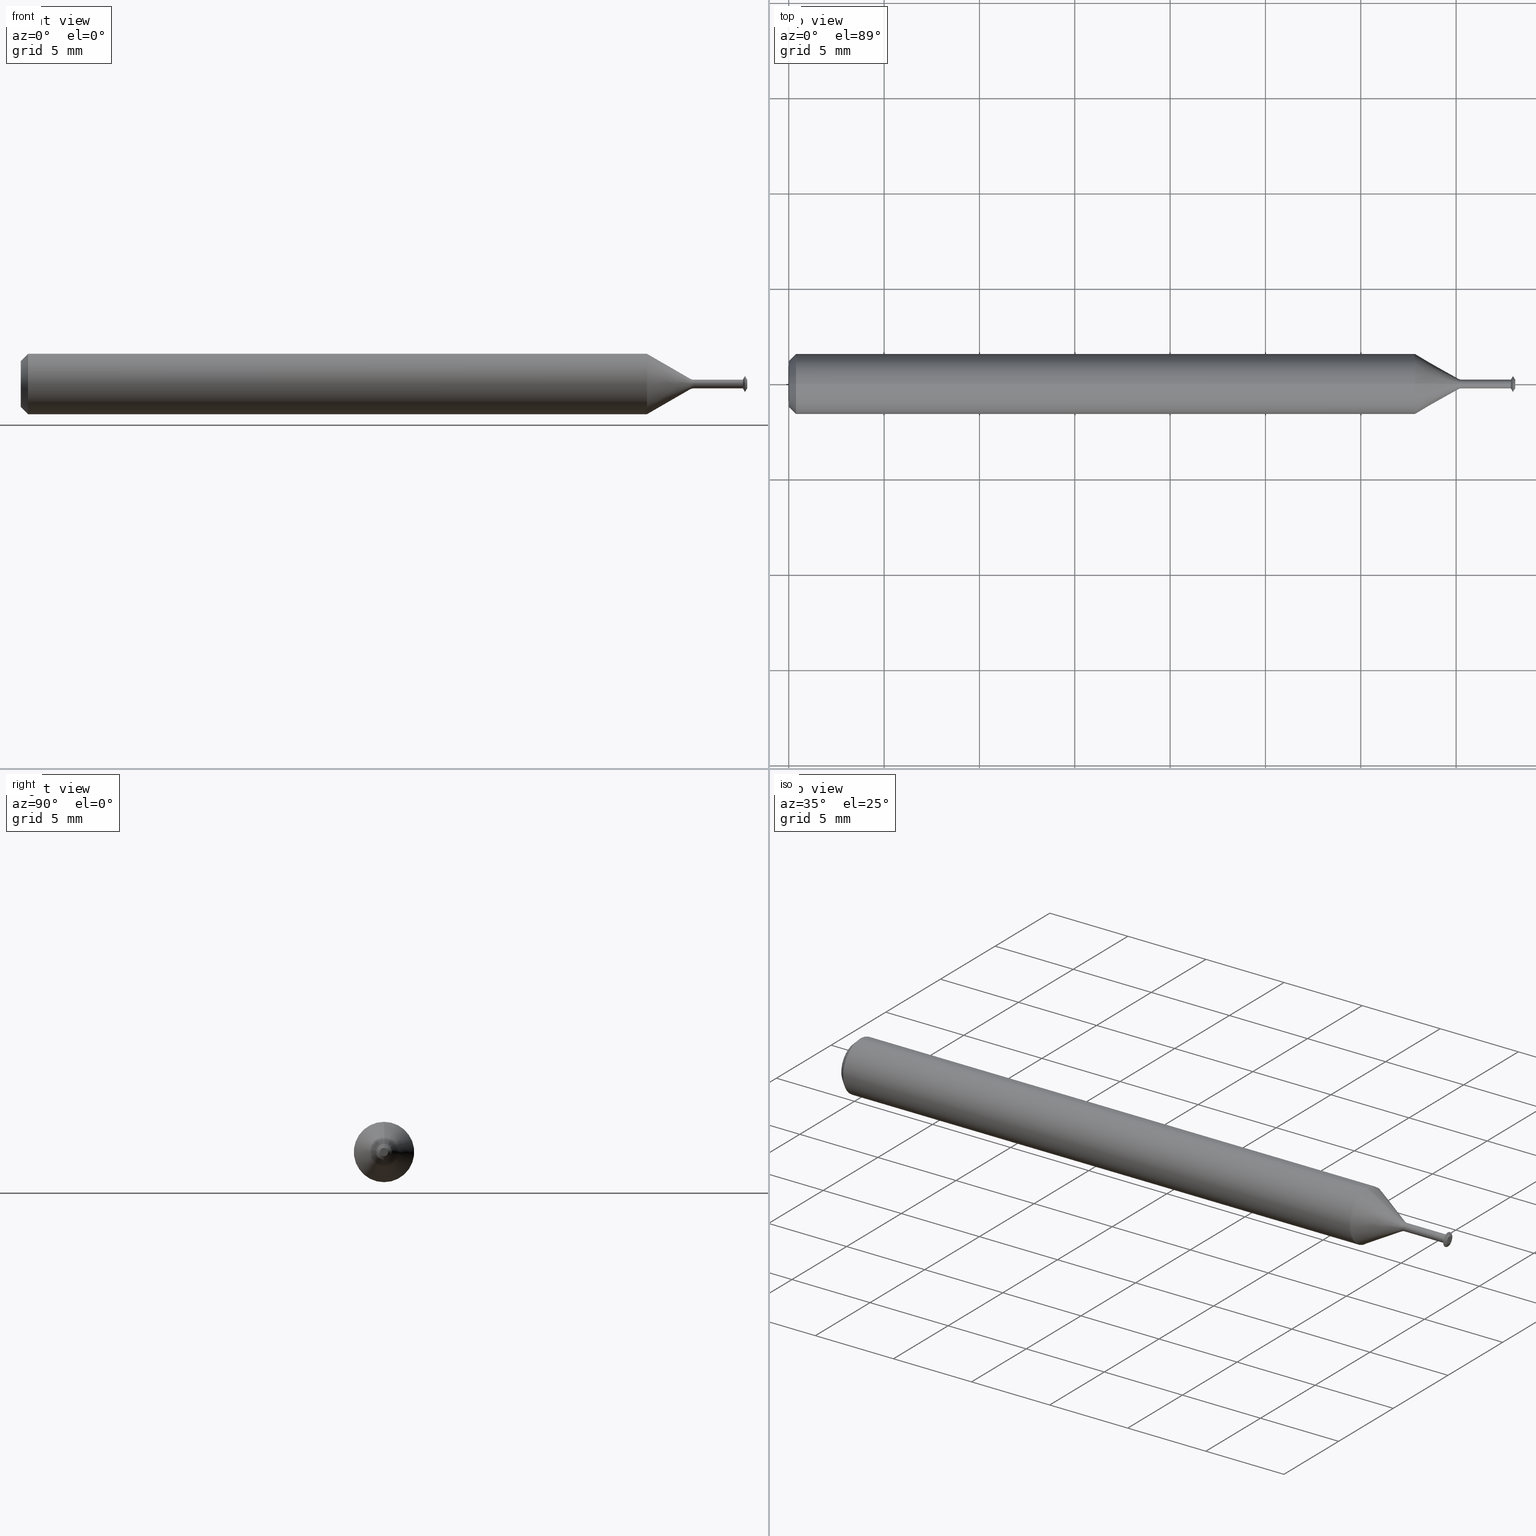
[diagram: canonical four-view strip — front | top / right | iso, engineering-drawing reading convention]
A machine part, canonical four-view strip (front | top / right | iso — engineering-drawing reading convention). The complete STEP part file that produces these views, byte-faithful:
ISO-10303-21;
HEADER;
FILE_DESCRIPTION (( 'STEP AP214' ),
    '1' );
FILE_NAME ('SPTM032L.STEP',
    '2019-04-02T20:39:58',
    ( '' ),
    ( '' ),
    'SwSTEP 2.0',
    'SolidWorks 2018',
    '' );
FILE_SCHEMA (( 'AUTOMOTIVE_DESIGN' ));
ENDSEC;

DATA;
#1 = CARTESIAN_POINT ( 'NONE',  ( 1.292941102884447746, 0.0000000000000000000, 0.06235000000000000958 ) ) ;
#2 = EDGE_LOOP ( 'NONE', ( #229, #59, #367, #34 ) ) ;
#3 = DIRECTION ( 'NONE',  ( 0.0000000000000000000, 0.0000000000000000000, 1.000000000000000000 ) ) ;
#4 = CIRCLE ( 'NONE', #404, 0.008999999999999983707 ) ;
#5 = EDGE_CURVE ( 'NONE', #386, #9, #76, .T. ) ;
#6 = VERTEX_POINT ( 'NONE', #230 ) ;
#7 = CARTESIAN_POINT ( 'NONE',  ( 1.500000000000000222, 0.0000000000000000000, 0.008499999999999724790 ) ) ;
#8 = AXIS2_PLACEMENT_3D ( 'NONE', #443, #181, #302 ) ;
#9 = VERTEX_POINT ( 'NONE', #19 ) ;
#10 = EDGE_CURVE ( 'NONE', #83, #29, #380, .T. ) ;
#11 = DIRECTION ( 'NONE',  ( -1.000000000000000000, -0.0000000000000000000, -0.0000000000000000000 ) ) ;
#12 = ORIENTED_EDGE ( 'NONE', *, *, #5, .T. ) ;
#13 = CARTESIAN_POINT ( 'NONE',  ( 0.0000000000000000000, 1.102182119232616794E-18, -0.008999999999999990646 ) ) ;
#14 = AXIS2_PLACEMENT_3D ( 'NONE', #190, #275, #418 ) ;
#15 = ADVANCED_FACE ( 'NONE', ( #222 ), #469, .T. ) ;
#16 = LINE ( 'NONE', #220, #110 ) ;
#17 = DIRECTION ( 'NONE',  ( 0.0000000000000000000, 0.0000000000000000000, -1.000000000000000000 ) ) ;
#18 = EDGE_LOOP ( 'NONE', ( #329, #162, #461, #331 ) ) ;
#19 = CARTESIAN_POINT ( 'NONE',  ( 1.495696013468246877, 1.959434878635731133E-18, -0.01599999999999972278 ) ) ;
#20 = ORIENTED_EDGE ( 'NONE', *, *, #95, .F. ) ;
#21 = VECTOR ( 'NONE', #236, 39.37007874015748143 ) ;
#22 = STYLED_ITEM ( 'NONE', ( #254 ), #276 ) ;
#23 = EDGE_CURVE ( 'NONE', #386, #281, #325, .T. ) ;
#24 = ORIENTED_EDGE ( 'NONE', *, *, #270, .T. ) ;
#25 = DIRECTION ( 'NONE',  ( -0.4977310399125972062, 1.062174661273186727E-16, -0.8673314314075815101 ) ) ;
#26 = SURFACE_SIDE_STYLE ('',( #73 ) ) ;
#27 = ADVANCED_BREP_SHAPE_REPRESENTATION ( 'SPTM032L', ( #276, #233 ), #488 ) ;
#28 = DIRECTION ( 'NONE',  ( 0.0000000000000000000, 0.0000000000000000000, -1.000000000000000000 ) ) ;
#29 = VERTEX_POINT ( 'NONE', #104 ) ;
#30 = CARTESIAN_POINT ( 'NONE',  ( 1.495696013468246877, 0.0000000000000000000, 0.01599999999999972278 ) ) ;
#31 = VERTEX_POINT ( 'NONE', #43 ) ;
#32 = AXIS2_PLACEMENT_3D ( 'NONE', #100, #227, #268 ) ;
#33 = DIRECTION ( 'NONE',  ( 0.0000000000000000000, 0.0000000000000000000, 1.000000000000000000 ) ) ;
#34 = ORIENTED_EDGE ( 'NONE', *, *, #219, .T. ) ;
#35 = CARTESIAN_POINT ( 'NONE',  ( 0.0000000000000000000, 0.0000000000000000000, 0.0000000000000000000 ) ) ;
#36 = EDGE_CURVE ( 'NONE', #284, #197, #167, .T. ) ;
#37 =( NAMED_UNIT ( * ) SI_UNIT ( $, .STERADIAN. ) SOLID_ANGLE_UNIT ( ) );
#38 = DIRECTION ( 'NONE',  ( -0.8660254037844383745, 6.123233995736770966E-17, -0.5000000000000004441 ) ) ;
#39 = VERTEX_POINT ( 'NONE', #415 ) ;
#40 = EDGE_CURVE ( 'NONE', #284, #297, #121, .T. ) ;
#41 = DIRECTION ( 'NONE',  ( 0.4977310399125676188, 1.062174661273208051E-16, 0.8673314314075987186 ) ) ;
#42 = CYLINDRICAL_SURFACE ( 'NONE', #44, 0.06235000000000000264 ) ;
#43 = CARTESIAN_POINT ( 'NONE',  ( 1.381865251354714053, 0.0000000000000000000, 0.01100961894323346582 ) ) ;
#44 = AXIS2_PLACEMENT_3D ( 'NONE', #79, #321, #3 ) ;
#45 = DIRECTION ( 'NONE',  ( 0.0000000000000000000, -1.000000000000000000, 0.0000000000000000000 ) ) ;
#46 = ADVANCED_FACE ( 'NONE', ( #237 ), #287, .T. ) ;
#47 = CIRCLE ( 'NONE', #416, 0.01599999999999972625 ) ;
#48 = ADVANCED_FACE ( 'NONE', ( #495 ), #214, .T. ) ;
#49 = CARTESIAN_POINT ( 'NONE',  ( 0.0000000000000000000, 0.0000000000000000000, 0.0000000000000000000 ) ) ;
#50 = VECTOR ( 'NONE', #54, 39.37007874015748143 ) ;
#51 = ADVANCED_FACE ( 'NONE', ( #441 ), #293, .T. ) ;
#52 = CARTESIAN_POINT ( 'NONE',  ( 1.490978959371944246, 0.0000000000000000000, 0.0000000000000000000 ) ) ;
#53 = EDGE_CURVE ( 'NONE', #408, #31, #313, .T. ) ;
#54 = DIRECTION ( 'NONE',  ( -1.000000000000000000, -0.0000000000000000000, -0.0000000000000000000 ) ) ;
#55 = AXIS2_PLACEMENT_3D ( 'NONE', #52, #360, #215 ) ;
#56 = TOROIDAL_SURFACE ( 'NONE', #498, 0.02399999999999999356, 0.01500000000000001159 ) ;
#57 = PLANE ( 'NONE',  #144 ) ;
#58 = CIRCLE ( 'NONE', #195, 0.06235000000000000264 ) ;
#59 = ORIENTED_EDGE ( 'NONE', *, *, #164, .F. ) ;
#60 = APPLICATION_PROTOCOL_DEFINITION ( 'draft international standard', 'automotive_design', 1998, #340 ) ;
#61 = CYLINDRICAL_SURFACE ( 'NONE', #339, 0.008999999999999990646 ) ;
#62 = STYLED_ITEM ( 'NONE', ( #475 ), #27 ) ;
#63 = APPLICATION_CONTEXT ( 'automotive_design' ) ;
#64 = EDGE_CURVE ( 'NONE', #465, #6, #112, .T. ) ;
#65 = ORIENTED_EDGE ( 'NONE', *, *, #357, .F. ) ;
#66 = ORIENTED_EDGE ( 'NONE', *, *, #300, .F. ) ;
#67 = CARTESIAN_POINT ( 'NONE',  ( 0.01499999999999996649, 0.0000000000000000000, 0.0000000000000000000 ) ) ;
#68 = VECTOR ( 'NONE', #41, 39.37007874015748143 ) ;
#69 = EDGE_LOOP ( 'NONE', ( #249, #428, #231, #342 ) ) ;
#70 = ORIENTED_EDGE ( 'NONE', *, *, #139, .F. ) ;
#71 = MECHANICAL_DESIGN_GEOMETRIC_PRESENTATION_REPRESENTATION (  '', ( #22 ), #102 ) ;
#72 = DIRECTION ( 'NONE',  ( 0.0000000000000000000, 0.0000000000000000000, -1.000000000000000000 ) ) ;
#73 = SURFACE_STYLE_FILL_AREA ( #308 ) ;
#74 = CONICAL_SURFACE ( 'NONE', #210, 0.04734999999999997544, 0.7853981633974503884 ) ;
#75 = DIRECTION ( 'NONE',  ( 0.0000000000000000000, 0.0000000000000000000, -1.000000000000000000 ) ) ;
#76 = LINE ( 'NONE', #486, #353 ) ;
#77 =( CONVERSION_BASED_UNIT ( 'INCH', #133 ) LENGTH_UNIT ( ) NAMED_UNIT ( #202 ) );
#78 = EDGE_LOOP ( 'NONE', ( #290, #24, #303, #239 ) ) ;
#79 = CARTESIAN_POINT ( 'NONE',  ( 0.0000000000000000000, 0.0000000000000000000, 0.0000000000000000000 ) ) ;
#80 = UNCERTAINTY_MEASURE_WITH_UNIT (LENGTH_MEASURE( 1.000000000000000082E-05 ), #77, 'distance_accuracy_value', 'NONE');
#81 = DIRECTION ( 'NONE',  ( 0.0000000000000000000, 0.0000000000000000000, 1.000000000000000000 ) ) ;
#82 = COLOUR_RGB ( '',0.7529411764705882248, 0.7529411764705882248, 0.7529411764705882248 ) ;
#83 = VERTEX_POINT ( 'NONE', #409 ) ;
#84 = DIRECTION ( 'NONE',  ( -1.000000000000000000, -0.0000000000000000000, -0.0000000000000000000 ) ) ;
#85 = EDGE_LOOP ( 'NONE', ( #170, #400, #128, #70 ) ) ;
#86 = CARTESIAN_POINT ( 'NONE',  ( 1.500000000000000222, 0.0000000000000000000, 0.0000000000000000000 ) ) ;
#87 = CONICAL_SURFACE ( 'NONE', #158, 0.008499999999999724790, 1.049815545074606504 ) ;
#88 = DIRECTION ( 'NONE',  ( 1.000000000000000000, 0.0000000000000000000, 0.0000000000000000000 ) ) ;
#89 = ORIENTED_EDGE ( 'NONE', *, *, #64, .T. ) ;
#90 = ADVANCED_FACE ( 'NONE', ( #242 ), #57, .F. ) ;
#91 = PRESENTATION_LAYER_ASSIGNMENT (  '', '', ( #62 ) ) ;
#92 = DIRECTION ( 'NONE',  ( -0.0000000000000000000, 0.0000000000000000000, 1.000000000000000000 ) ) ;
#93 = VERTEX_POINT ( 'NONE', #476 ) ;
#94 = CARTESIAN_POINT ( 'NONE',  ( 1.494996013468246732, 0.0000000000000000000, 0.0000000000000000000 ) ) ;
#95 = EDGE_CURVE ( 'NONE', #225, #83, #427, .T. ) ;
#96 = LINE ( 'NONE', #324, #68 ) ;
#97 = EDGE_LOOP ( 'NONE', ( #113, #108, #257, #501 ) ) ;
#98 = DIRECTION ( 'NONE',  ( 0.7071067811865460184, 0.0000000000000000000, -0.7071067811865489050 ) ) ;
#99 = EDGE_LOOP ( 'NONE', ( #402, #369, #208, #152 ) ) ;
#100 = CARTESIAN_POINT ( 'NONE',  ( 1.381865251354714053, 0.0000000000000000000, 0.0000000000000000000 ) ) ;
#101 = LENGTH_MEASURE_WITH_UNIT ( LENGTH_MEASURE( 0.02539999999999999897 ), #234 );
#102 =( GEOMETRIC_REPRESENTATION_CONTEXT ( 3 ) GLOBAL_UNCERTAINTY_ASSIGNED_CONTEXT ( ( #80 ) ) GLOBAL_UNIT_ASSIGNED_CONTEXT ( ( #77, #320, #37 ) ) REPRESENTATION_CONTEXT ( 'NONE', 'WORKASPACE' ) );
#103 = FACE_OUTER_BOUND ( 'NONE', #135, .T. ) ;
#104 = CARTESIAN_POINT ( 'NONE',  ( 0.01499999999999996649, 7.635672792683746671E-18, -0.06235000000000000264 ) ) ;
#105 = PRODUCT_CONTEXT ( 'NONE', #63, 'mechanical' ) ;
#106 = EDGE_LOOP ( 'NONE', ( #424, #157, #292, #174 ) ) ;
#107 = DIRECTION ( 'NONE',  ( 0.0000000000000000000, 0.0000000000000000000, 1.000000000000000000 ) ) ;
#108 = ORIENTED_EDGE ( 'NONE', *, *, #392, .T. ) ;
#109 = APPLICATION_PROTOCOL_DEFINITION ( 'draft international standard', 'automotive_design', 1998, #63 ) ;
#110 = VECTOR ( 'NONE', #11, 39.37007874015748143 ) ;
#111 = CARTESIAN_POINT ( 'NONE',  ( 0.0000000000000000000, 0.0000000000000000000, 0.01599999999999972625 ) ) ;
#112 = CIRCLE ( 'NONE', #55, 0.008999999999999997585 ) ;
#113 = ORIENTED_EDGE ( 'NONE', *, *, #145, .F. ) ;
#114 = AXIS2_PLACEMENT_3D ( 'NONE', #49, #258, #17 ) ;
#115 = CARTESIAN_POINT ( 'NONE',  ( 1.494996013468246732, 1.959434878635731519E-18, -0.01599999999999972625 ) ) ;
#116 = EDGE_CURVE ( 'NONE', #281, #386, #147, .T. ) ;
#117 = EDGE_CURVE ( 'NONE', #29, #297, #58, .T. ) ;
#118 = VECTOR ( 'NONE', #454, 39.37007874015748143 ) ;
#119 = CARTESIAN_POINT ( 'NONE',  ( 0.0000000000000000000, 0.0000000000000000000, 0.0000000000000000000 ) ) ;
#120 = CARTESIAN_POINT ( 'NONE',  ( 0.0000000000000000000, 0.0000000000000000000, 0.0000000000000000000 ) ) ;
#121 = LINE ( 'NONE', #223, #50 ) ;
#122 = DIRECTION ( 'NONE',  ( 0.0000000000000000000, 0.0000000000000000000, 1.000000000000000000 ) ) ;
#123 = MECHANICAL_DESIGN_GEOMETRIC_PRESENTATION_REPRESENTATION (  '', ( #62 ), #149 ) ;
#124 = SURFACE_STYLE_USAGE ( .BOTH. , #396 ) ;
#125 = UNCERTAINTY_MEASURE_WITH_UNIT (LENGTH_MEASURE( 1.000000000000000082E-05 ), #452, 'distance_accuracy_value', 'NONE');
#126 = DIRECTION ( 'NONE',  ( -0.4977310399125972062, 0.0000000000000000000, 0.8673314314075815101 ) ) ;
#127 = CIRCLE ( 'NONE', #282, 0.01599999999999972625 ) ;
#128 = ORIENTED_EDGE ( 'NONE', *, *, #224, .T. ) ;
#129 = DIRECTION ( 'NONE',  ( 0.0000000000000000000, 0.0000000000000000000, 1.000000000000000000 ) ) ;
#130 = CARTESIAN_POINT ( 'NONE',  ( 1.389365251354714115, 0.0000000000000000000, 0.0000000000000000000 ) ) ;
#131 = DIRECTION ( 'NONE',  ( 0.0000000000000000000, 0.0000000000000000000, 1.000000000000000000 ) ) ;
#132 = LINE ( 'NONE', #151, #21 ) ;
#133 = LENGTH_MEASURE_WITH_UNIT ( LENGTH_MEASURE( 0.02539999999999999897 ), #352 );
#134 = AXIS2_PLACEMENT_3D ( 'NONE', #429, #160, #394 ) ;
#135 = EDGE_LOOP ( 'NONE', ( #142, #12, #432, #140 ) ) ;
#136 = ADVANCED_FACE ( 'NONE', ( #213 ), #221, .T. ) ;
#137 = DIRECTION ( 'NONE',  ( 0.0000000000000000000, 0.0000000000000000000, 1.000000000000000000 ) ) ;
#138 = DIRECTION ( 'NONE',  ( 0.0000000000000000000, 0.0000000000000000000, 1.000000000000000000 ) ) ;
#139 = EDGE_CURVE ( 'NONE', #31, #93, #323, .T. ) ;
#140 = ORIENTED_EDGE ( 'NONE', *, *, #248, .F. ) ;
#141 = DIRECTION ( 'NONE',  ( 0.0000000000000000000, 0.0000000000000000000, 1.000000000000000000 ) ) ;
#142 = ORIENTED_EDGE ( 'NONE', *, *, #116, .T. ) ;
#143 = DIRECTION ( 'NONE',  ( 1.000000000000000000, 0.0000000000000000000, 0.0000000000000000000 ) ) ;
#144 = AXIS2_PLACEMENT_3D ( 'NONE', #375, #364, #92 ) ;
#145 = EDGE_CURVE ( 'NONE', #197, #29, #16, .T. ) ;
#146 = EDGE_CURVE ( 'NONE', #39, #397, #127, .T. ) ;
#147 = CIRCLE ( 'NONE', #166, 0.008499999999999724790 ) ;
#148 = DIRECTION ( 'NONE',  ( 0.0000000000000000000, 0.0000000000000000000, 1.000000000000000000 ) ) ;
#149 =( GEOMETRIC_REPRESENTATION_CONTEXT ( 3 ) GLOBAL_UNCERTAINTY_ASSIGNED_CONTEXT ( ( #466 ) ) GLOBAL_UNIT_ASSIGNED_CONTEXT ( ( #232, #450, #187 ) ) REPRESENTATION_CONTEXT ( 'NONE', 'WORKASPACE' ) );
#150 = DIRECTION ( 'NONE',  ( 0.0000000000000000000, 0.0000000000000000000, 1.000000000000000000 ) ) ;
#151 = CARTESIAN_POINT ( 'NONE',  ( 0.0000000000000000000, 0.0000000000000000000, 0.008999999999999990646 ) ) ;
#152 = ORIENTED_EDGE ( 'NONE', *, *, #178, .F. ) ;
#153 = DIRECTION ( 'NONE',  ( -0.0000000000000000000, 1.000000000000000000, 1.224646799147353207E-16 ) ) ;
#154 = LINE ( 'NONE', #289, #458 ) ;
#155 = PLANE ( 'NONE',  #362 ) ;
#156 = DIRECTION ( 'NONE',  ( -1.000000000000000000, -0.0000000000000000000, -0.0000000000000000000 ) ) ;
#157 = ORIENTED_EDGE ( 'NONE', *, *, #322, .F. ) ;
#158 = AXIS2_PLACEMENT_3D ( 'NONE', #246, #430, #122 ) ;
#159 = DIRECTION ( 'NONE',  ( 0.0000000000000000000, 0.0000000000000000000, 1.000000000000000000 ) ) ;
#160 = DIRECTION ( 'NONE',  ( -1.000000000000000000, -0.0000000000000000000, -0.0000000000000000000 ) ) ;
#161 = FILL_AREA_STYLE ('',( #204 ) ) ;
#162 = ORIENTED_EDGE ( 'NONE', *, *, #145, .T. ) ;
#163 = CARTESIAN_POINT ( 'NONE',  ( 1.389365251354714115, 0.0000000000000000000, 0.0000000000000000000 ) ) ;
#164 = EDGE_CURVE ( 'NONE', #31, #408, #420, .T. ) ;
#165 = VECTOR ( 'NONE', #467, 39.37007874015748854 ) ;
#166 = AXIS2_PLACEMENT_3D ( 'NONE', #86, #172, #138 ) ;
#167 = CIRCLE ( 'NONE', #433, 0.06235000000000000264 ) ;
#168 = TOROIDAL_SURFACE ( 'NONE', #14, 0.02399999999999999356, 0.01500000000000001159 ) ;
#169 = ADVANCED_FACE ( 'NONE', ( #410 ), #301, .T. ) ;
#170 = ORIENTED_EDGE ( 'NONE', *, *, #53, .F. ) ;
#171 = DIRECTION ( 'NONE',  ( 0.0000000000000000000, 0.0000000000000000000, 1.000000000000000000 ) ) ;
#172 = DIRECTION ( 'NONE',  ( -1.000000000000000000, -0.0000000000000000000, -0.0000000000000000000 ) ) ;
#173 = FACE_OUTER_BOUND ( 'NONE', #447, .T. ) ;
#174 = ORIENTED_EDGE ( 'NONE', *, *, #448, .F. ) ;
#175 = CARTESIAN_POINT ( 'NONE',  ( 1.381865251354714053, 0.0000000000000000000, 0.0000000000000000000 ) ) ;
#176 = PRODUCT_DEFINITION_SHAPE ( 'NONE', 'NONE',  #261 ) ;
#177 = DIRECTION ( 'NONE',  ( 0.0000000000000000000, 0.0000000000000000000, 1.000000000000000000 ) ) ;
#178 = EDGE_CURVE ( 'NONE', #9, #453, #493, .T. ) ;
#179 = LINE ( 'NONE', #7, #373 ) ;
#180 = CARTESIAN_POINT ( 'NONE',  ( 0.0000000000000000000, 0.0000000000000000000, -0.04734999999999997544 ) ) ;
#181 = DIRECTION ( 'NONE',  ( -1.000000000000000000, -0.0000000000000000000, -0.0000000000000000000 ) ) ;
#182 = ORIENTED_EDGE ( 'NONE', *, *, #64, .F. ) ;
#183 = AXIS2_PLACEMENT_3D ( 'NONE', #120, #348, #72 ) ;
#184 = COLOUR_RGB ( '',0.7529411764705882248, 0.7529411764705882248, 0.7529411764705882248 ) ;
#185 = DIRECTION ( 'NONE',  ( -1.000000000000000000, -0.0000000000000000000, -0.0000000000000000000 ) ) ;
#186 = CIRCLE ( 'NONE', #243, 0.01599999999999972625 ) ;
#187 =( NAMED_UNIT ( * ) SI_UNIT ( $, .STERADIAN. ) SOLID_ANGLE_UNIT ( ) );
#188 = ORIENTED_EDGE ( 'NONE', *, *, #53, .T. ) ;
#189 =( NAMED_UNIT ( * ) PLANE_ANGLE_UNIT ( ) SI_UNIT ( $, .RADIAN. ) );
#190 = CARTESIAN_POINT ( 'NONE',  ( 1.389365251354714115, 0.0000000000000000000, 0.0000000000000000000 ) ) ;
#191 = CARTESIAN_POINT ( 'NONE',  ( 1.490978959371944246, 1.530808498934174253E-18, 0.008999999999999997585 ) ) ;
#192 = FACE_OUTER_BOUND ( 'NONE', #422, .T. ) ;
#193 = DIRECTION ( 'NONE',  ( 0.0000000000000000000, 0.0000000000000000000, 1.000000000000000000 ) ) ;
#194 = EDGE_LOOP ( 'NONE', ( #66, #203, #491, #309 ) ) ;
#195 = AXIS2_PLACEMENT_3D ( 'NONE', #439, #328, #435 ) ;
#196 = CARTESIAN_POINT ( 'NONE',  ( 1.500000000000000222, 1.500192328955473735E-18, -0.008499999999999724790 ) ) ;
#197 = VERTEX_POINT ( 'NONE', #442 ) ;
#198 = CARTESIAN_POINT ( 'NONE',  ( 1.494996013468246732, 0.0000000000000000000, -0.01599999999999972625 ) ) ;
#199 = LINE ( 'NONE', #350, #306 ) ;
#200 = CARTESIAN_POINT ( 'NONE',  ( 1.389365251354714115, 0.0000000000000000000, 0.0000000000000000000 ) ) ;
#201 = ORIENTED_EDGE ( 'NONE', *, *, #211, .T. ) ;
#202 = DIMENSIONAL_EXPONENTS ( 1.000000000000000000, 0.0000000000000000000, 0.0000000000000000000, 0.0000000000000000000, 0.0000000000000000000, 0.0000000000000000000, 0.0000000000000000000 ) ;
#203 = ORIENTED_EDGE ( 'NONE', *, *, #178, .T. ) ;
#204 = FILL_AREA_STYLE_COLOUR ( '', #82 ) ;
#205 = VECTOR ( 'NONE', #298, 39.37007874015748143 ) ;
#206 = DIMENSIONAL_EXPONENTS ( 1.000000000000000000, 0.0000000000000000000, 0.0000000000000000000, 0.0000000000000000000, 0.0000000000000000000, 0.0000000000000000000, 0.0000000000000000000 ) ;
#207 = ORIENTED_EDGE ( 'NONE', *, *, #23, .F. ) ;
#208 = ORIENTED_EDGE ( 'NONE', *, *, #248, .T. ) ;
#209 = CIRCLE ( 'NONE', #134, 0.008999999999999997585 ) ;
#210 = AXIS2_PLACEMENT_3D ( 'NONE', #35, #390, #75 ) ;
#211 = EDGE_CURVE ( 'NONE', #6, #338, #312, .T. ) ;
#212 = ADVANCED_FACE ( 'NONE', ( #192 ), #482, .T. ) ;
#213 = FACE_OUTER_BOUND ( 'NONE', #349, .T. ) ;
#214 = CONICAL_SURFACE ( 'NONE', #483, 0.01100961894323346235, 0.5235987755982993708 ) ;
#215 = DIRECTION ( 'NONE',  ( 0.0000000000000000000, 0.0000000000000000000, 1.000000000000000000 ) ) ;
#216 = ORIENTED_EDGE ( 'NONE', *, *, #235, .T. ) ;
#217 = ADVANCED_FACE ( 'NONE', ( #399 ), #291, .T. ) ;
#218 = CARTESIAN_POINT ( 'NONE',  ( 0.0000000000000000000, 0.0000000000000000000, 0.0000000000000000000 ) ) ;
#219 = EDGE_CURVE ( 'NONE', #93, #338, #384, .T. ) ;
#220 = CARTESIAN_POINT ( 'NONE',  ( 0.0000000000000000000, 7.635672792683746671E-18, -0.06235000000000000264 ) ) ;
#221 = CONICAL_SURFACE ( 'NONE', #226, 0.01100961894323346235, 0.5235987755982993708 ) ;
#222 = FACE_OUTER_BOUND ( 'NONE', #99, .T. ) ;
#223 = CARTESIAN_POINT ( 'NONE',  ( 0.0000000000000000000, 0.0000000000000000000, 0.06235000000000000264 ) ) ;
#224 = EDGE_CURVE ( 'NONE', #338, #93, #4, .T. ) ;
#225 = VERTEX_POINT ( 'NONE', #471 ) ;
#226 = AXIS2_PLACEMENT_3D ( 'NONE', #368, #335, #137 ) ;
#227 = DIRECTION ( 'NONE',  ( -1.000000000000000000, -0.0000000000000000000, -0.0000000000000000000 ) ) ;
#228 = LINE ( 'NONE', #381, #118 ) ;
#229 = ORIENTED_EDGE ( 'NONE', *, *, #437, .F. ) ;
#230 = CARTESIAN_POINT ( 'NONE',  ( 1.490978959371944246, 0.0000000000000000000, -0.008999999999999997585 ) ) ;
#231 = ORIENTED_EDGE ( 'NONE', *, *, #146, .F. ) ;
#232 =( CONVERSION_BASED_UNIT ( 'INCH', #363 ) LENGTH_UNIT ( ) NAMED_UNIT ( #206 ) );
#233 = AXIS2_PLACEMENT_3D ( 'NONE', #341, #148, #378 ) ;
#234 =( LENGTH_UNIT ( ) NAMED_UNIT ( * ) SI_UNIT ( $, .METRE. ) );
#235 = EDGE_CURVE ( 'NONE', #465, #39, #96, .T. ) ;
#236 = DIRECTION ( 'NONE',  ( -1.000000000000000000, -0.0000000000000000000, -0.0000000000000000000 ) ) ;
#237 = FACE_OUTER_BOUND ( 'NONE', #194, .T. ) ;
#238 = DIRECTION ( 'NONE',  ( 0.0000000000000000000, 0.0000000000000000000, 1.000000000000000000 ) ) ;
#239 = ORIENTED_EDGE ( 'NONE', *, *, #499, .F. ) ;
#240 = DIRECTION ( 'NONE',  ( -1.000000000000000000, -0.0000000000000000000, -0.0000000000000000000 ) ) ;
#241 = DIRECTION ( 'NONE',  ( 0.4977310399125676188, 0.0000000000000000000, -0.8673314314075987186 ) ) ;
#242 = FACE_OUTER_BOUND ( 'NONE', #319, .T. ) ;
#243 = AXIS2_PLACEMENT_3D ( 'NONE', #426, #156, #389 ) ;
#244 = DIRECTION ( 'NONE',  ( -1.000000000000000000, -0.0000000000000000000, -0.0000000000000000000 ) ) ;
#245 = ORIENTED_EDGE ( 'NONE', *, *, #347, .T. ) ;
#246 = CARTESIAN_POINT ( 'NONE',  ( 1.500000000000000222, 0.0000000000000000000, 0.0000000000000000000 ) ) ;
#247 = CARTESIAN_POINT ( 'NONE',  ( 1.500000000000000222, 0.0000000000000000000, 0.008499999999999724790 ) ) ;
#248 = EDGE_CURVE ( 'NONE', #281, #453, #179, .T. ) ;
#249 = ORIENTED_EDGE ( 'NONE', *, *, #419, .T. ) ;
#250 = DIRECTION ( 'NONE',  ( -1.000000000000000000, -0.0000000000000000000, -0.0000000000000000000 ) ) ;
#251 = EDGE_CURVE ( 'NONE', #225, #297, #468, .T. ) ;
#252 = DIRECTION ( 'NONE',  ( 0.0000000000000000000, 0.0000000000000000000, -1.000000000000000000 ) ) ;
#253 = AXIS2_PLACEMENT_3D ( 'NONE', #480, #45, #252 ) ;
#254 = PRESENTATION_STYLE_ASSIGNMENT (( #124 ) ) ;
#255 = DIMENSIONAL_EXPONENTS ( 1.000000000000000000, 0.0000000000000000000, 0.0000000000000000000, 0.0000000000000000000, 0.0000000000000000000, 0.0000000000000000000, 0.0000000000000000000 ) ;
#256 = CARTESIAN_POINT ( 'NONE',  ( 1.500000000000000222, 0.0000000000000000000, 0.0000000000000000000 ) ) ;
#257 = ORIENTED_EDGE ( 'NONE', *, *, #40, .T. ) ;
#258 = DIRECTION ( 'NONE',  ( -1.000000000000000000, -0.0000000000000000000, -0.0000000000000000000 ) ) ;
#259 = ADVANCED_FACE ( 'NONE', ( #279 ), #56, .F. ) ;
#260 = DIRECTION ( 'NONE',  ( 0.0000000000000000000, 0.0000000000000000000, 1.000000000000000000 ) ) ;
#261 = PRODUCT_DEFINITION ( 'UNKNOWN', '', #288, #455 ) ;
#262 = DIRECTION ( 'NONE',  ( -1.000000000000000000, -0.0000000000000000000, -0.0000000000000000000 ) ) ;
#263 = EDGE_LOOP ( 'NONE', ( #20, #358, #414, #317 ) ) ;
#264 = ADVANCED_FACE ( 'NONE', ( #267 ), #42, .T. ) ;
#265 = DIRECTION ( 'NONE',  ( -1.000000000000000000, -0.0000000000000000000, -0.0000000000000000000 ) ) ;
#266 = DIRECTION ( 'NONE',  ( 0.0000000000000000000, 0.0000000000000000000, 1.000000000000000000 ) ) ;
#267 = FACE_OUTER_BOUND ( 'NONE', #97, .T. ) ;
#268 = DIRECTION ( 'NONE',  ( 0.0000000000000000000, 0.0000000000000000000, 1.000000000000000000 ) ) ;
#269 = ORIENTED_EDGE ( 'NONE', *, *, #224, .F. ) ;
#270 = EDGE_CURVE ( 'NONE', #408, #197, #154, .T. ) ;
#271 = SURFACE_STYLE_USAGE ( .BOTH. , #26 ) ;
#272 = LINE ( 'NONE', #111, #351 ) ;
#273 = FILL_AREA_STYLE_COLOUR ( '', #184 ) ;
#274 = ORIENTED_EDGE ( 'NONE', *, *, #392, .F. ) ;
#275 = DIRECTION ( 'NONE',  ( -1.000000000000000000, -0.0000000000000000000, -0.0000000000000000000 ) ) ;
#276 = MANIFOLD_SOLID_BREP ( 'D2E6CD99-F9C7-4f8e-A78C-28697E84F901-GAAFaceID9', #299 ) ;
#277 = EDGE_CURVE ( 'NONE', #6, #465, #209, .T. ) ;
#278 = CARTESIAN_POINT ( 'NONE',  ( 1.495696013468246877, 0.0000000000000000000, 0.0000000000000000000 ) ) ;
#279 = FACE_OUTER_BOUND ( 'NONE', #2, .T. ) ;
#280 = DIRECTION ( 'NONE',  ( 1.000000000000000000, 0.0000000000000000000, 0.0000000000000000000 ) ) ;
#281 = VERTEX_POINT ( 'NONE', #247 ) ;
#282 = AXIS2_PLACEMENT_3D ( 'NONE', #406, #265, #260 ) ;
#283 = DIRECTION ( 'NONE',  ( -1.000000000000000000, -0.0000000000000000000, -0.0000000000000000000 ) ) ;
#284 = VERTEX_POINT ( 'NONE', #1 ) ;
#285 = CARTESIAN_POINT ( 'NONE',  ( 1.389365251354714115, 1.102182119232616409E-18, -0.008999999999999983707 ) ) ;
#286 = CYLINDRICAL_SURFACE ( 'NONE', #316, 0.06235000000000000264 ) ;
#287 = CYLINDRICAL_SURFACE ( 'NONE', #8, 0.01599999999999972625 ) ;
#288 = PRODUCT_DEFINITION_FORMATION_WITH_SPECIFIED_SOURCE ( 'ANY', '', #401, .NOT_KNOWN. ) ;
#289 = CARTESIAN_POINT ( 'NONE',  ( 1.381865251354714053, 1.348289459866292480E-18, -0.01100961894323346235 ) ) ;
#290 = ORIENTED_EDGE ( 'NONE', *, *, #164, .T. ) ;
#291 = CYLINDRICAL_SURFACE ( 'NONE', #446, 0.01599999999999972625 ) ;
#292 = ORIENTED_EDGE ( 'NONE', *, *, #10, .T. ) ;
#293 = CONICAL_SURFACE ( 'NONE', #456, 0.04734999999999997544, 0.7853981633974503884 ) ;
#294 = AXIS2_PLACEMENT_3D ( 'NONE', #496, #240, #193 ) ;
#295 = FACE_OUTER_BOUND ( 'NONE', #18, .T. ) ;
#296 = ADVANCED_FACE ( 'NONE', ( #103 ), #87, .T. ) ;
#297 = VERTEX_POINT ( 'NONE', #318 ) ;
#298 = DIRECTION ( 'NONE',  ( -1.000000000000000000, -0.0000000000000000000, -0.0000000000000000000 ) ) ;
#299 = CLOSED_SHELL ( 'NONE', ( #332, #361, #48, #474, #212, #169, #217, #296, #90, #15, #46, #407, #366, #259, #136, #264, #371, #51 ) ) ;
#300 = EDGE_CURVE ( 'NONE', #9, #397, #199, .T. ) ;
#301 = CONICAL_SURFACE ( 'NONE', #327, 0.01599999999999972625, 1.049815545074640699 ) ;
#302 = DIRECTION ( 'NONE',  ( 0.0000000000000000000, 0.0000000000000000000, 1.000000000000000000 ) ) ;
#303 = ORIENTED_EDGE ( 'NONE', *, *, #36, .F. ) ;
#304 = DIRECTION ( 'NONE',  ( -1.000000000000000000, -0.0000000000000000000, -0.0000000000000000000 ) ) ;
#305 = AXIS2_PLACEMENT_3D ( 'NONE', #175, #262, #330 ) ;
#306 = VECTOR ( 'NONE', #244, 39.37007874015748143 ) ;
#307 = ORIENTED_EDGE ( 'NONE', *, *, #499, .T. ) ;
#308 = FILL_AREA_STYLE ('',( #273 ) ) ;
#309 = ORIENTED_EDGE ( 'NONE', *, *, #347, .F. ) ;
#310 = PRODUCT_RELATED_PRODUCT_CATEGORY ( 'part', '', ( #401 ) ) ;
#311 = DIRECTION ( 'NONE',  ( 1.000000000000000000, 0.0000000000000000000, 0.0000000000000000000 ) ) ;
#312 = LINE ( 'NONE', #13, #205 ) ;
#313 = CIRCLE ( 'NONE', #32, 0.01100961894323346235 ) ;
#314 = ORIENTED_EDGE ( 'NONE', *, *, #211, .F. ) ;
#315 = CARTESIAN_POINT ( 'NONE',  ( 0.0000000000000000000, 0.0000000000000000000, 0.0000000000000000000 ) ) ;
#316 = AXIS2_PLACEMENT_3D ( 'NONE', #119, #346, #33 ) ;
#317 = ORIENTED_EDGE ( 'NONE', *, *, #10, .F. ) ;
#318 = CARTESIAN_POINT ( 'NONE',  ( 0.01499999999999996649, 0.0000000000000000000, 0.06235000000000000264 ) ) ;
#319 = EDGE_LOOP ( 'NONE', ( #359, #207 ) ) ;
#320 =( NAMED_UNIT ( * ) PLANE_ANGLE_UNIT ( ) SI_UNIT ( $, .RADIAN. ) );
#321 = DIRECTION ( 'NONE',  ( -1.000000000000000000, -0.0000000000000000000, -0.0000000000000000000 ) ) ;
#322 = EDGE_CURVE ( 'NONE', #83, #225, #405, .T. ) ;
#323 = CIRCLE ( 'NONE', #253, 0.01500000000000001159 ) ;
#324 = CARTESIAN_POINT ( 'NONE',  ( 1.494996013468246732, 1.959434878635731519E-18, 0.01599999999999972625 ) ) ;
#325 = CIRCLE ( 'NONE', #412, 0.008499999999999724790 ) ;
#326 = ORIENTED_EDGE ( 'NONE', *, *, #357, .T. ) ;
#327 = AXIS2_PLACEMENT_3D ( 'NONE', #94, #88, #333 ) ;
#328 = DIRECTION ( 'NONE',  ( 1.000000000000000000, 0.0000000000000000000, 0.0000000000000000000 ) ) ;
#329 = ORIENTED_EDGE ( 'NONE', *, *, #36, .T. ) ;
#330 = DIRECTION ( 'NONE',  ( 0.0000000000000000000, 0.0000000000000000000, 1.000000000000000000 ) ) ;
#331 = ORIENTED_EDGE ( 'NONE', *, *, #40, .F. ) ;
#332 = ADVANCED_FACE ( 'NONE', ( #444 ), #74, .T. ) ;
#333 = DIRECTION ( 'NONE',  ( 0.0000000000000000000, 0.0000000000000000000, -1.000000000000000000 ) ) ;
#334 = ORIENTED_EDGE ( 'NONE', *, *, #219, .F. ) ;
#335 = DIRECTION ( 'NONE',  ( -1.000000000000000000, -0.0000000000000000000, -0.0000000000000000000 ) ) ;
#336 = EDGE_LOOP ( 'NONE', ( #431, #460 ) ) ;
#337 = CARTESIAN_POINT ( 'NONE',  ( 0.0000000000000000000, 0.0000000000000000000, 0.0000000000000000000 ) ) ;
#338 = VERTEX_POINT ( 'NONE', #285 ) ;
#339 = AXIS2_PLACEMENT_3D ( 'NONE', #315, #283, #159 ) ;
#340 = APPLICATION_CONTEXT ( 'automotive_design' ) ;
#341 = CARTESIAN_POINT ( 'NONE',  ( 0.0000000000000000000, 0.0000000000000000000, 0.0000000000000000000 ) ) ;
#342 = ORIENTED_EDGE ( 'NONE', *, *, #462, .F. ) ;
#343 = CARTESIAN_POINT ( 'NONE',  ( 1.494996013468246732, 0.0000000000000000000, 0.0000000000000000000 ) ) ;
#344 = SURFACE_STYLE_FILL_AREA ( #161 ) ;
#345 = AXIS2_PLACEMENT_3D ( 'NONE', #478, #470, #131 ) ;
#346 = DIRECTION ( 'NONE',  ( -1.000000000000000000, -0.0000000000000000000, -0.0000000000000000000 ) ) ;
#347 = EDGE_CURVE ( 'NONE', #397, #39, #186, .T. ) ;
#348 = DIRECTION ( 'NONE',  ( -1.000000000000000000, -0.0000000000000000000, -0.0000000000000000000 ) ) ;
#349 = EDGE_LOOP ( 'NONE', ( #388, #188, #307, #274 ) ) ;
#350 = CARTESIAN_POINT ( 'NONE',  ( 0.0000000000000000000, 1.959434878635731519E-18, -0.01599999999999972625 ) ) ;
#351 = VECTOR ( 'NONE', #492, 39.37007874015748143 ) ;
#352 =( LENGTH_UNIT ( ) NAMED_UNIT ( * ) SI_UNIT ( $, .METRE. ) );
#353 = VECTOR ( 'NONE', #25, 39.37007874015748854 ) ;
#354 = DIRECTION ( 'NONE',  ( 0.0000000000000000000, 0.0000000000000000000, 1.000000000000000000 ) ) ;
#355 = DIRECTION ( 'NONE',  ( -1.000000000000000000, -0.0000000000000000000, -0.0000000000000000000 ) ) ;
#356 = LINE ( 'NONE', #198, #391 ) ;
#357 = EDGE_CURVE ( 'NONE', #6, #397, #356, .T. ) ;
#358 = ORIENTED_EDGE ( 'NONE', *, *, #251, .T. ) ;
#359 = ORIENTED_EDGE ( 'NONE', *, *, #116, .F. ) ;
#360 = DIRECTION ( 'NONE',  ( -1.000000000000000000, -0.0000000000000000000, -0.0000000000000000000 ) ) ;
#361 = ADVANCED_FACE ( 'NONE', ( #295 ), #286, .T. ) ;
#362 = AXIS2_PLACEMENT_3D ( 'NONE', #459, #497, #387 ) ;
#363 = LENGTH_MEASURE_WITH_UNIT ( LENGTH_MEASURE( 0.02539999999999999897 ), #489 );
#364 = DIRECTION ( 'NONE',  ( -1.000000000000000000, 0.0000000000000000000, -0.0000000000000000000 ) ) ;
#365 = FACE_OUTER_BOUND ( 'NONE', #85, .T. ) ;
#366 = ADVANCED_FACE ( 'NONE', ( #487 ), #61, .T. ) ;
#367 = ORIENTED_EDGE ( 'NONE', *, *, #139, .T. ) ;
#368 = CARTESIAN_POINT ( 'NONE',  ( 1.381865251354714053, 0.0000000000000000000, 0.0000000000000000000 ) ) ;
#369 = ORIENTED_EDGE ( 'NONE', *, *, #23, .T. ) ;
#370 = DIRECTION ( 'NONE',  ( -1.000000000000000000, -0.0000000000000000000, -0.0000000000000000000 ) ) ;
#371 = ADVANCED_FACE ( 'NONE', ( #477 ), #155, .F. ) ;
#372 = CARTESIAN_POINT ( 'NONE',  ( 1.381865251354714053, 0.0000000000000000000, 0.0000000000000000000 ) ) ;
#373 = VECTOR ( 'NONE', #126, 39.37007874015748854 ) ;
#374 = EDGE_LOOP ( 'NONE', ( #182, #216, #472, #65 ) ) ;
#375 = CARTESIAN_POINT ( 'NONE',  ( 1.500000000000000222, 0.008499999999999724790, 0.0000000000000000000 ) ) ;
#376 = AXIS2_PLACEMENT_3D ( 'NONE', #200, #457, #150 ) ;
#377 = EDGE_LOOP ( 'NONE', ( #314, #411, #484, #269 ) ) ;
#378 = DIRECTION ( 'NONE',  ( 1.000000000000000000, 0.0000000000000000000, 0.0000000000000000000 ) ) ;
#379 = CIRCLE ( 'NONE', #438, 0.01500000000000001159 ) ;
#380 = LINE ( 'NONE', #180, #479 ) ;
#381 = CARTESIAN_POINT ( 'NONE',  ( 1.381865251354714053, 0.0000000000000000000, 0.01100961894323346235 ) ) ;
#382 = DIRECTION ( 'NONE',  ( 0.0000000000000000000, -1.224646799147353207E-16, 1.000000000000000000 ) ) ;
#383 = AXIS2_PLACEMENT_3D ( 'NONE', #449, #185, #107 ) ;
#384 = CIRCLE ( 'NONE', #376, 0.008999999999999983707 ) ;
#385 = CARTESIAN_POINT ( 'NONE',  ( 1.381865251354714053, 1.348289459866293251E-18, -0.01100961894323346582 ) ) ;
#386 = VERTEX_POINT ( 'NONE', #196 ) ;
#387 = DIRECTION ( 'NONE',  ( 0.0000000000000000000, 0.0000000000000000000, -1.000000000000000000 ) ) ;
#388 = ORIENTED_EDGE ( 'NONE', *, *, #270, .F. ) ;
#389 = DIRECTION ( 'NONE',  ( 0.0000000000000000000, 0.0000000000000000000, 1.000000000000000000 ) ) ;
#390 = DIRECTION ( 'NONE',  ( 1.000000000000000000, 0.0000000000000000000, 0.0000000000000000000 ) ) ;
#391 = VECTOR ( 'NONE', #241, 39.37007874015748143 ) ;
#392 = EDGE_CURVE ( 'NONE', #197, #284, #464, .T. ) ;
#393 = AXIS2_PLACEMENT_3D ( 'NONE', #343, #280, #423 ) ;
#394 = DIRECTION ( 'NONE',  ( 0.0000000000000000000, 0.0000000000000000000, 1.000000000000000000 ) ) ;
#395 = ORIENTED_EDGE ( 'NONE', *, *, #235, .F. ) ;
#396 = SURFACE_SIDE_STYLE ('',( #344 ) ) ;
#397 = VERTEX_POINT ( 'NONE', #115 ) ;
#398 = CARTESIAN_POINT ( 'NONE',  ( 0.0000000000000000000, 5.798702593962713995E-18, 0.04734999999999997544 ) ) ;
#399 = FACE_OUTER_BOUND ( 'NONE', #69, .T. ) ;
#400 = ORIENTED_EDGE ( 'NONE', *, *, #437, .T. ) ;
#401 = PRODUCT ( 'SPTM032L', 'SPTM032L', '', ( #105 ) ) ;
#402 = ORIENTED_EDGE ( 'NONE', *, *, #5, .F. ) ;
#403 = DIRECTION ( 'NONE',  ( -1.000000000000000000, -0.0000000000000000000, -0.0000000000000000000 ) ) ;
#404 = AXIS2_PLACEMENT_3D ( 'NONE', #130, #355, #81 ) ;
#405 = CIRCLE ( 'NONE', #183, 0.04734999999999997544 ) ;
#406 = CARTESIAN_POINT ( 'NONE',  ( 1.494996013468246732, 0.0000000000000000000, 0.0000000000000000000 ) ) ;
#407 = ADVANCED_FACE ( 'NONE', ( #173 ), #451, .T. ) ;
#408 = VERTEX_POINT ( 'NONE', #385 ) ;
#409 = CARTESIAN_POINT ( 'NONE',  ( 0.0000000000000000000, 0.0000000000000000000, -0.04734999999999997544 ) ) ;
#410 = FACE_OUTER_BOUND ( 'NONE', #374, .T. ) ;
#411 = ORIENTED_EDGE ( 'NONE', *, *, #277, .T. ) ;
#412 = AXIS2_PLACEMENT_3D ( 'NONE', #256, #370, #141 ) ;
#413 = DIRECTION ( 'NONE',  ( 0.0000000000000000000, 0.0000000000000000000, -1.000000000000000000 ) ) ;
#414 = ORIENTED_EDGE ( 'NONE', *, *, #117, .F. ) ;
#415 = CARTESIAN_POINT ( 'NONE',  ( 1.494996013468246732, 0.0000000000000000000, 0.01599999999999972625 ) ) ;
#416 = AXIS2_PLACEMENT_3D ( 'NONE', #278, #494, #238 ) ;
#417 =( NAMED_UNIT ( * ) SI_UNIT ( $, .STERADIAN. ) SOLID_ANGLE_UNIT ( ) );
#418 = DIRECTION ( 'NONE',  ( 0.0000000000000000000, 0.0000000000000000000, 1.000000000000000000 ) ) ;
#419 = EDGE_CURVE ( 'NONE', #453, #9, #47, .T. ) ;
#420 = CIRCLE ( 'NONE', #305, 0.01100961894323346235 ) ;
#421 = CARTESIAN_POINT ( 'NONE',  ( 1.389365251354714115, 2.939152317953646967E-18, -0.02399999999999999356 ) ) ;
#422 = EDGE_LOOP ( 'NONE', ( #89, #201, #334, #436 ) ) ;
#423 = DIRECTION ( 'NONE',  ( 0.0000000000000000000, 0.0000000000000000000, -1.000000000000000000 ) ) ;
#424 = ORIENTED_EDGE ( 'NONE', *, *, #251, .F. ) ;
#425 = AXIS2_PLACEMENT_3D ( 'NONE', #218, #84, #129 ) ;
#426 = CARTESIAN_POINT ( 'NONE',  ( 1.494996013468246732, 0.0000000000000000000, 0.0000000000000000000 ) ) ;
#427 = CIRCLE ( 'NONE', #114, 0.04734999999999997544 ) ;
#428 = ORIENTED_EDGE ( 'NONE', *, *, #300, .T. ) ;
#429 = CARTESIAN_POINT ( 'NONE',  ( 1.490978959371944246, 0.0000000000000000000, 0.0000000000000000000 ) ) ;
#430 = DIRECTION ( 'NONE',  ( -1.000000000000000000, -0.0000000000000000000, -0.0000000000000000000 ) ) ;
#431 = ORIENTED_EDGE ( 'NONE', *, *, #322, .T. ) ;
#432 = ORIENTED_EDGE ( 'NONE', *, *, #419, .F. ) ;
#433 = AXIS2_PLACEMENT_3D ( 'NONE', #481, #445, #266 ) ;
#434 = CARTESIAN_POINT ( 'NONE',  ( 0.0000000000000000000, 0.0000000000000000000, 0.0000000000000000000 ) ) ;
#435 = DIRECTION ( 'NONE',  ( 0.0000000000000000000, 0.0000000000000000000, -1.000000000000000000 ) ) ;
#436 = ORIENTED_EDGE ( 'NONE', *, *, #485, .F. ) ;
#437 = EDGE_CURVE ( 'NONE', #408, #338, #379, .T. ) ;
#438 = AXIS2_PLACEMENT_3D ( 'NONE', #421, #153, #382 ) ;
#439 = CARTESIAN_POINT ( 'NONE',  ( 0.01499999999999996649, 0.0000000000000000000, 0.0000000000000000000 ) ) ;
#440 = SHAPE_DEFINITION_REPRESENTATION ( #176, #27 ) ;
#441 = FACE_OUTER_BOUND ( 'NONE', #106, .T. ) ;
#442 = CARTESIAN_POINT ( 'NONE',  ( 1.292941102884447746, 7.635672792683748212E-18, -0.06235000000000000958 ) ) ;
#443 = CARTESIAN_POINT ( 'NONE',  ( 0.0000000000000000000, 0.0000000000000000000, 0.0000000000000000000 ) ) ;
#444 = FACE_OUTER_BOUND ( 'NONE', #263, .T. ) ;
#445 = DIRECTION ( 'NONE',  ( -1.000000000000000000, -0.0000000000000000000, -0.0000000000000000000 ) ) ;
#446 = AXIS2_PLACEMENT_3D ( 'NONE', #434, #403, #171 ) ;
#447 = EDGE_LOOP ( 'NONE', ( #395, #490, #326, #245 ) ) ;
#448 = EDGE_CURVE ( 'NONE', #297, #29, #500, .T. ) ;
#449 = CARTESIAN_POINT ( 'NONE',  ( 1.500000000000000222, 0.0000000000000000000, 0.0000000000000000000 ) ) ;
#450 =( NAMED_UNIT ( * ) PLANE_ANGLE_UNIT ( ) SI_UNIT ( $, .RADIAN. ) );
#451 = CONICAL_SURFACE ( 'NONE', #393, 0.01599999999999972625, 1.049815545074640699 ) ;
#452 =( CONVERSION_BASED_UNIT ( 'INCH', #101 ) LENGTH_UNIT ( ) NAMED_UNIT ( #255 ) );
#453 = VERTEX_POINT ( 'NONE', #30 ) ;
#454 = DIRECTION ( 'NONE',  ( -0.8660254037844383745, 0.0000000000000000000, 0.5000000000000004441 ) ) ;
#455 = PRODUCT_DEFINITION_CONTEXT ( 'detailed design', #340, 'design' ) ;
#456 = AXIS2_PLACEMENT_3D ( 'NONE', #337, #143, #413 ) ;
#457 = DIRECTION ( 'NONE',  ( -1.000000000000000000, -0.0000000000000000000, -0.0000000000000000000 ) ) ;
#458 = VECTOR ( 'NONE', #38, 39.37007874015748143 ) ;
#459 = CARTESIAN_POINT ( 'NONE',  ( 0.0000000000000000000, 0.0000000000000000000, 0.0000000000000000000 ) ) ;
#460 = ORIENTED_EDGE ( 'NONE', *, *, #95, .T. ) ;
#461 = ORIENTED_EDGE ( 'NONE', *, *, #117, .T. ) ;
#462 = EDGE_CURVE ( 'NONE', #453, #39, #272, .T. ) ;
#463 = AXIS2_PLACEMENT_3D ( 'NONE', #67, #311, #28 ) ;
#464 = CIRCLE ( 'NONE', #294, 0.06235000000000000264 ) ;
#465 = VERTEX_POINT ( 'NONE', #191 ) ;
#466 = UNCERTAINTY_MEASURE_WITH_UNIT (LENGTH_MEASURE( 1.000000000000000082E-05 ), #232, 'distance_accuracy_value', 'NONE');
#467 = DIRECTION ( 'NONE',  ( 0.7071067811865460184, 8.659560562354950115E-17, 0.7071067811865489050 ) ) ;
#468 = LINE ( 'NONE', #398, #165 ) ;
#469 = CONICAL_SURFACE ( 'NONE', #383, 0.008499999999999724790, 1.049815545074606504 ) ;
#470 = DIRECTION ( 'NONE',  ( -1.000000000000000000, -0.0000000000000000000, -0.0000000000000000000 ) ) ;
#471 = CARTESIAN_POINT ( 'NONE',  ( 0.0000000000000000000, 6.717187693323230718E-18, 0.04734999999999997544 ) ) ;
#472 = ORIENTED_EDGE ( 'NONE', *, *, #146, .T. ) ;
#473 = PRESENTATION_LAYER_ASSIGNMENT (  '', '', ( #22 ) ) ;
#474 = ADVANCED_FACE ( 'NONE', ( #365 ), #168, .F. ) ;
#475 = PRESENTATION_STYLE_ASSIGNMENT (( #271 ) ) ;
#476 = CARTESIAN_POINT ( 'NONE',  ( 1.389365251354714115, 0.0000000000000000000, 0.008999999999999983707 ) ) ;
#477 = FACE_OUTER_BOUND ( 'NONE', #336, .T. ) ;
#478 = CARTESIAN_POINT ( 'NONE',  ( 1.495696013468246877, 0.0000000000000000000, 0.0000000000000000000 ) ) ;
#479 = VECTOR ( 'NONE', #98, 39.37007874015748854 ) ;
#480 = CARTESIAN_POINT ( 'NONE',  ( 1.389365251354714115, 0.0000000000000000000, 0.02399999999999999356 ) ) ;
#481 = CARTESIAN_POINT ( 'NONE',  ( 1.292941102884447746, 0.0000000000000000000, 0.0000000000000000000 ) ) ;
#482 = CYLINDRICAL_SURFACE ( 'NONE', #425, 0.008999999999999990646 ) ;
#483 = AXIS2_PLACEMENT_3D ( 'NONE', #372, #304, #177 ) ;
#484 = ORIENTED_EDGE ( 'NONE', *, *, #485, .T. ) ;
#485 = EDGE_CURVE ( 'NONE', #465, #93, #132, .T. ) ;
#486 = CARTESIAN_POINT ( 'NONE',  ( 1.500000000000000222, 1.040949779275216528E-18, -0.008499999999999724790 ) ) ;
#487 = FACE_OUTER_BOUND ( 'NONE', #377, .T. ) ;
#488 =( GEOMETRIC_REPRESENTATION_CONTEXT ( 3 ) GLOBAL_UNCERTAINTY_ASSIGNED_CONTEXT ( ( #125 ) ) GLOBAL_UNIT_ASSIGNED_CONTEXT ( ( #452, #189, #417 ) ) REPRESENTATION_CONTEXT ( 'NONE', 'WORKASPACE' ) );
#489 =( LENGTH_UNIT ( ) NAMED_UNIT ( * ) SI_UNIT ( $, .METRE. ) );
#490 = ORIENTED_EDGE ( 'NONE', *, *, #277, .F. ) ;
#491 = ORIENTED_EDGE ( 'NONE', *, *, #462, .T. ) ;
#492 = DIRECTION ( 'NONE',  ( -1.000000000000000000, -0.0000000000000000000, -0.0000000000000000000 ) ) ;
#493 = CIRCLE ( 'NONE', #345, 0.01599999999999972625 ) ;
#494 = DIRECTION ( 'NONE',  ( -1.000000000000000000, -0.0000000000000000000, -0.0000000000000000000 ) ) ;
#495 = FACE_OUTER_BOUND ( 'NONE', #78, .T. ) ;
#496 = CARTESIAN_POINT ( 'NONE',  ( 1.292941102884447746, 0.0000000000000000000, 0.0000000000000000000 ) ) ;
#497 = DIRECTION ( 'NONE',  ( 1.000000000000000000, 0.0000000000000000000, 0.0000000000000000000 ) ) ;
#498 = AXIS2_PLACEMENT_3D ( 'NONE', #163, #250, #354 ) ;
#499 = EDGE_CURVE ( 'NONE', #31, #284, #228, .T. ) ;
#500 = CIRCLE ( 'NONE', #463, 0.06235000000000000264 ) ;
#501 = ORIENTED_EDGE ( 'NONE', *, *, #448, .T. ) ;
ENDSEC;
END-ISO-10303-21;
